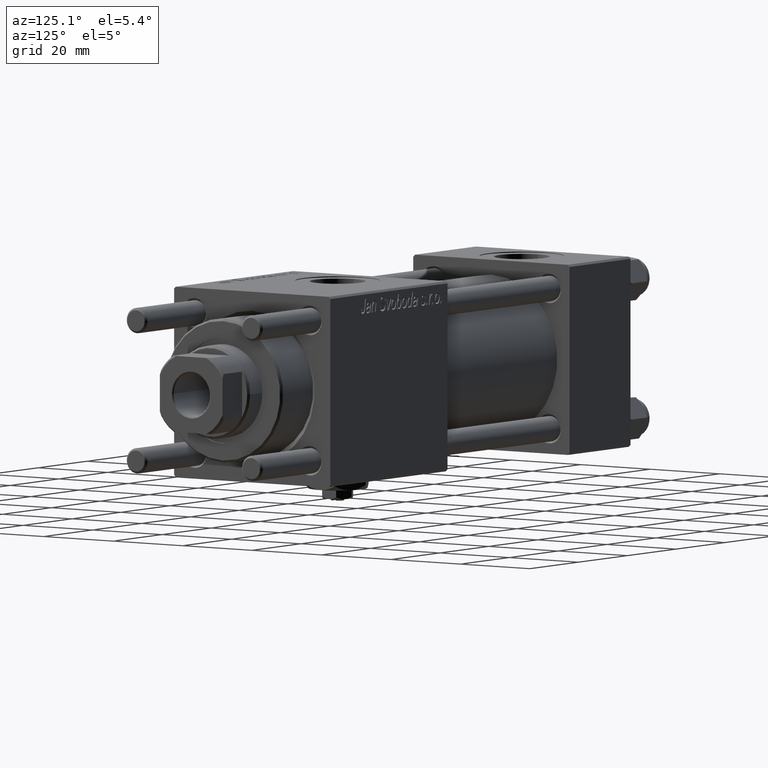
[diagram: clean part render]
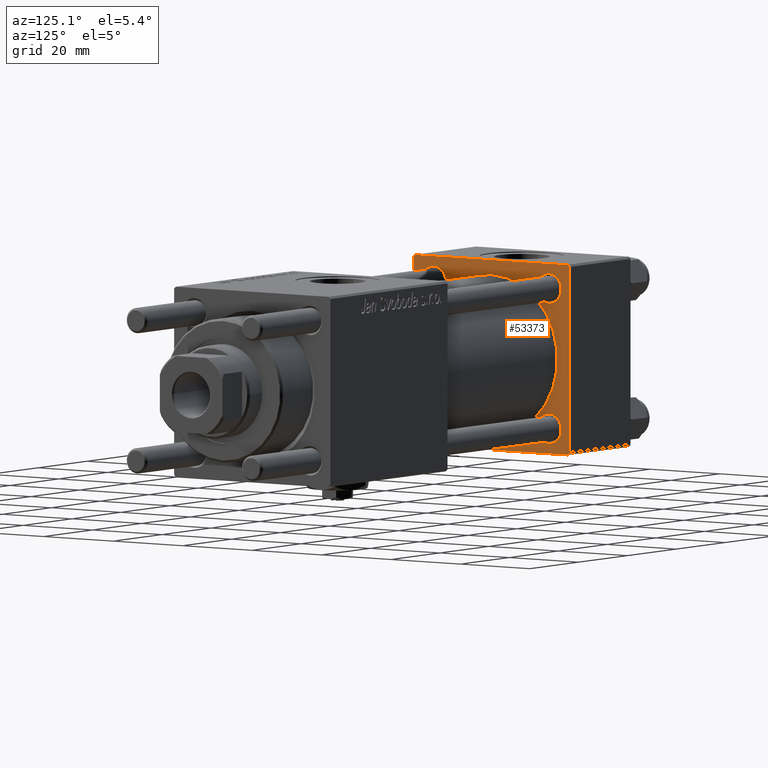
[diagram: same view with one face highlighted and labeled with its STEP entity id]
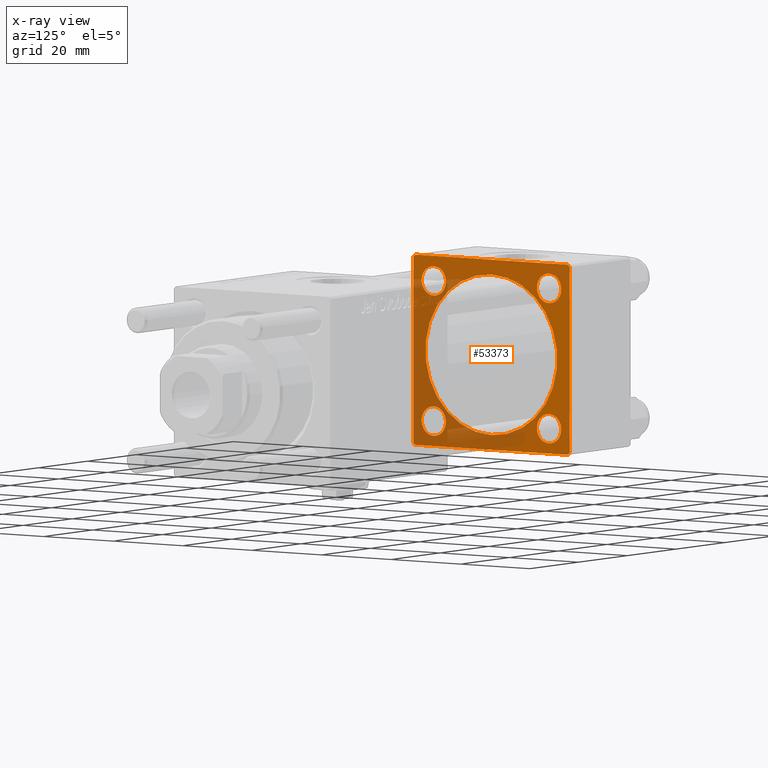
[diagram: x-ray of the same camera — body ghosted, the highlighted face saturated]
A machine part, auxiliary view. The second image highlights one B-rep face of the part: STEP entity #53373.
The next image is the same camera in x-ray: the body ghosted, the highlighted face saturated — about 42% of this face is hidden behind the body in this view.
In plain terms, the highlighted planar face has unit normal (-1, 0, 0).
Its self-contained STEP definition (entity closure, byte-faithful):
#847 = AXIS2_PLACEMENT_3D ( 'NONE', #55986, #29028, #7140 ) ;
#1072 = AXIS2_PLACEMENT_3D ( 'NONE', #54815, #8357, #23141 ) ;
#1102 = CARTESIAN_POINT ( 'NONE',  ( 25.00000000000000000, 22.50000000000000000, 22.50000000000000355 ) ) ;
#1128 = ORIENTED_EDGE ( 'NONE', *, *, #42527, .F. ) ;
#1263 = CARTESIAN_POINT ( 'NONE',  ( 25.00000000000000000, -22.50000000000000000, 22.00000000000000000 ) ) ;
#1580 = EDGE_LOOP ( 'NONE', ( #45397, #8542, #6514, #31144, #29597, #16347, #33210, #57409 ) ) ;
#1860 = CARTESIAN_POINT ( 'NONE',  ( 25.00000000000000000, -2.602085213965210642E-15, 0.000000000000000000 ) ) ;
#2073 = ORIENTED_EDGE ( 'NONE', *, *, #24302, .T. ) ;
#2341 = CARTESIAN_POINT ( 'NONE',  ( 25.00000000000000000, 16.59999999999999787, 20.10000000000000853 ) ) ;
#2348 = CARTESIAN_POINT ( 'NONE',  ( 25.00000000000000000, -16.59999999999999076, -16.60000000000000853 ) ) ;
#2454 = DIRECTION ( 'NONE',  ( 0.000000000000000000, 0.000000000000000000, 1.000000000000000000 ) ) ;
#3834 = DIRECTION ( 'NONE',  ( -1.000000000000000000, 0.000000000000000000, -0.000000000000000000 ) ) ;
#4342 = VERTEX_POINT ( 'NONE', #29108 ) ;
#4539 = CARTESIAN_POINT ( 'NONE',  ( 25.00000000000000000, 16.59999999999999787, -16.60000000000000497 ) ) ;
#4641 = VERTEX_POINT ( 'NONE', #22555 ) ;
#5210 = ORIENTED_EDGE ( 'NONE', *, *, #20395, .T. ) ;
#5440 = CARTESIAN_POINT ( 'NONE',  ( 25.00000000000000000, 22.50000000000000000, 21.99999999999999645 ) ) ;
#6058 = CARTESIAN_POINT ( 'NONE',  ( 25.00000000000000000, 0.000000000000000000, 0.000000000000000000 ) ) ;
#6514 = ORIENTED_EDGE ( 'NONE', *, *, #20107, .F. ) ;
#6740 = CIRCLE ( 'NONE', #1072, 3.499999999999992895 ) ;
#6781 = CARTESIAN_POINT ( 'NONE',  ( 25.00000000000000000, 22.50000000000000000, -22.49999999999999645 ) ) ;
#6878 = DIRECTION ( 'NONE',  ( 1.000000000000000000, -0.000000000000000000, 0.000000000000000000 ) ) ;
#7140 = DIRECTION ( 'NONE',  ( 0.000000000000000000, 0.000000000000000000, 1.000000000000000000 ) ) ;
#7391 = VERTEX_POINT ( 'NONE', #5440 ) ;
#7778 = EDGE_CURVE ( 'NONE', #49334, #56488, #23905, .T. ) ;
#8026 = CIRCLE ( 'NONE', #14614, 3.500000000000003109 ) ;
#8357 = DIRECTION ( 'NONE',  ( -1.000000000000000000, 0.000000000000000000, -0.000000000000000000 ) ) ;
#8542 = ORIENTED_EDGE ( 'NONE', *, *, #46347, .T. ) ;
#8986 = EDGE_LOOP ( 'NONE', ( #58377, #31448 ) ) ;
#9227 = LINE ( 'NONE', #45050, #24292 ) ;
#9330 = CARTESIAN_POINT ( 'NONE',  ( 25.00000000000000000, -22.50000000000000000, 22.50000000000000000 ) ) ;
#9516 = VECTOR ( 'NONE', #45141, 1000.000000000000000 ) ;
#10132 = AXIS2_PLACEMENT_3D ( 'NONE', #1860, #6878, #2454 ) ;
#10742 = DIRECTION ( 'NONE',  ( 0.000000000000000000, 0.7071067811865426878, -0.7071067811865524577 ) ) ;
#10872 = CARTESIAN_POINT ( 'NONE',  ( 25.00000000000000000, -2.602085213965210642E-15, 19.00000000000000000 ) ) ;
#11212 = DIRECTION ( 'NONE',  ( 0.000000000000000000, -0.7071067811865474617, 0.7071067811865474617 ) ) ;
#11435 = VERTEX_POINT ( 'NONE', #26628 ) ;
#11652 = CIRCLE ( 'NONE', #44756, 3.499999999999989342 ) ;
#11910 = VECTOR ( 'NONE', #23003, 1000.000000000000000 ) ;
#12442 = EDGE_LOOP ( 'NONE', ( #1128, #37909 ) ) ;
#12508 = VERTEX_POINT ( 'NONE', #57411 ) ;
#13913 = DIRECTION ( 'NONE',  ( 0.000000000000000000, 0.000000000000000000, 1.000000000000000000 ) ) ;
#14614 = AXIS2_PLACEMENT_3D ( 'NONE', #4539, #14848, #27279 ) ;
#14673 = CARTESIAN_POINT ( 'NONE',  ( 25.00000000000000000, 16.59999999999999787, 16.60000000000000497 ) ) ;
#14795 = EDGE_LOOP ( 'NONE', ( #15179, #5210 ) ) ;
#14848 = DIRECTION ( 'NONE',  ( -1.000000000000000000, 0.000000000000000000, -0.000000000000000000 ) ) ;
#14860 = DIRECTION ( 'NONE',  ( -0.000000000000000000, -0.7071067811865525687, -0.7071067811865425767 ) ) ;
#15179 = ORIENTED_EDGE ( 'NONE', *, *, #30203, .T. ) ;
#15831 = CARTESIAN_POINT ( 'NONE',  ( 25.00000000000000000, 21.99999999999999289, 22.50000000000000355 ) ) ;
#16347 = ORIENTED_EDGE ( 'NONE', *, *, #19129, .T. ) ;
#16426 = CIRCLE ( 'NONE', #18327, 19.00000000000000000 ) ;
#17039 = DIRECTION ( 'NONE',  ( 0.000000000000000000, 0.000000000000000000, 1.000000000000000000 ) ) ;
#17963 = CARTESIAN_POINT ( 'NONE',  ( 25.00000000000000000, 22.50000000000000000, -21.99999999999996803 ) ) ;
#18015 = DIRECTION ( 'NONE',  ( -1.000000000000000000, 0.000000000000000000, -0.000000000000000000 ) ) ;
#18315 = DIRECTION ( 'NONE',  ( 0.000000000000000000, 0.000000000000000000, 1.000000000000000000 ) ) ;
#18327 = AXIS2_PLACEMENT_3D ( 'NONE', #27811, #45597, #13913 ) ;
#18789 = EDGE_CURVE ( 'NONE', #28561, #42622, #48673, .T. ) ;
#19129 = EDGE_CURVE ( 'NONE', #21136, #50664, #57274, .T. ) ;
#19893 = EDGE_LOOP ( 'NONE', ( #2073, #44199 ) ) ;
#20107 = EDGE_CURVE ( 'NONE', #7391, #36459, #50157, .T. ) ;
#20222 = DIRECTION ( 'NONE',  ( -0.000000000000000000, 0.000000000000000000, 1.000000000000000000 ) ) ;
#20395 = EDGE_CURVE ( 'NONE', #12508, #4342, #6740, .T. ) ;
#21073 = CIRCLE ( 'NONE', #25795, 3.499999999999992895 ) ;
#21136 = VERTEX_POINT ( 'NONE', #33568 ) ;
#21185 = CARTESIAN_POINT ( 'NONE',  ( 25.00000000000000000, 16.59999999999999787, -20.10000000000000853 ) ) ;
#21859 = DIRECTION ( 'NONE',  ( 0.000000000000000000, 0.000000000000000000, 1.000000000000000000 ) ) ;
#22555 = CARTESIAN_POINT ( 'NONE',  ( 25.00000000000000000, 16.59999999999999787, 13.10000000000000142 ) ) ;
#22939 = CIRCLE ( 'NONE', #42811, 3.500000000000003109 ) ;
#23003 = DIRECTION ( 'NONE',  ( 0.000000000000000000, -1.000000000000000000, -7.709882115452476934E-17 ) ) ;
#23141 = DIRECTION ( 'NONE',  ( 0.000000000000000000, 0.000000000000000000, 1.000000000000000000 ) ) ;
#23795 = FACE_BOUND ( 'NONE', #51674, .T. ) ;
#23905 = CIRCLE ( 'NONE', #36162, 3.500000000000003109 ) ;
#24292 = VECTOR ( 'NONE', #37026, 1000.000000000000000 ) ;
#24302 = EDGE_CURVE ( 'NONE', #4641, #48651, #22939, .T. ) ;
#24530 = CARTESIAN_POINT ( 'NONE',  ( 25.00000000000000000, -21.99999999999997158, -22.50000000000000711 ) ) ;
#24817 = CARTESIAN_POINT ( 'NONE',  ( 25.00000000000000000, 21.99999999999999289, 22.50000000000000355 ) ) ;
#25795 = AXIS2_PLACEMENT_3D ( 'NONE', #42317, #29860, #28693 ) ;
#25879 = VECTOR ( 'NONE', #10742, 1000.000000000000000 ) ;
#25973 = DIRECTION ( 'NONE',  ( 0.000000000000000000, -1.000000000000000000, -2.312964634635742957E-16 ) ) ;
#26161 = CIRCLE ( 'NONE', #10132, 19.00000000000000000 ) ;
#26628 = CARTESIAN_POINT ( 'NONE',  ( 25.00000000000000000, -2.752562955852396712E-16, -19.00000000000000000 ) ) ;
#26747 = CARTESIAN_POINT ( 'NONE',  ( 25.00000000000000000, 22.50000000000000000, 22.50000000000000355 ) ) ;
#27279 = DIRECTION ( 'NONE',  ( 0.000000000000000000, 0.000000000000000000, 1.000000000000000000 ) ) ;
#27641 = EDGE_CURVE ( 'NONE', #42622, #28561, #11652, .T. ) ;
#27811 = CARTESIAN_POINT ( 'NONE',  ( 25.00000000000000000, -2.602085213965210642E-15, 0.000000000000000000 ) ) ;
#28520 = FACE_BOUND ( 'NONE', #8986, .T. ) ;
#28561 = VERTEX_POINT ( 'NONE', #38579 ) ;
#28693 = DIRECTION ( 'NONE',  ( 0.000000000000000000, 0.000000000000000000, 1.000000000000000000 ) ) ;
#29028 = DIRECTION ( 'NONE',  ( -1.000000000000000000, 0.000000000000000000, -0.000000000000000000 ) ) ;
#29108 = CARTESIAN_POINT ( 'NONE',  ( 25.00000000000000000, -16.59999999999999076, 13.10000000000001386 ) ) ;
#29597 = ORIENTED_EDGE ( 'NONE', *, *, #40262, .T. ) ;
#29860 = DIRECTION ( 'NONE',  ( -1.000000000000000000, 0.000000000000000000, -0.000000000000000000 ) ) ;
#29891 = VERTEX_POINT ( 'NONE', #24530 ) ;
#30010 = ORIENTED_EDGE ( 'NONE', *, *, #7778, .T. ) ;
#30055 = EDGE_CURVE ( 'NONE', #7391, #58223, #33710, .T. ) ;
#30203 = EDGE_CURVE ( 'NONE', #4342, #12508, #21073, .T. ) ;
#30692 = AXIS2_PLACEMENT_3D ( 'NONE', #44010, #56758, #17039 ) ;
#31144 = ORIENTED_EDGE ( 'NONE', *, *, #30055, .T. ) ;
#31448 = ORIENTED_EDGE ( 'NONE', *, *, #18789, .T. ) ;
#32481 = EDGE_CURVE ( 'NONE', #57630, #29891, #33238, .T. ) ;
#32732 = EDGE_CURVE ( 'NONE', #11435, #42760, #16426, .T. ) ;
#33210 = ORIENTED_EDGE ( 'NONE', *, *, #50699, .T. ) ;
#33238 = LINE ( 'NONE', #51305, #25879 ) ;
#33568 = CARTESIAN_POINT ( 'NONE',  ( 25.00000000000000000, -21.99999999999997868, 22.50000000000000000 ) ) ;
#33710 = LINE ( 'NONE', #24817, #47558 ) ;
#35805 = EDGE_CURVE ( 'NONE', #56488, #49334, #8026, .T. ) ;
#35811 = CIRCLE ( 'NONE', #847, 3.500000000000003109 ) ;
#35959 = AXIS2_PLACEMENT_3D ( 'NONE', #6058, #42442, #20222 ) ;
#36033 = LINE ( 'NONE', #1102, #11910 ) ;
#36162 = AXIS2_PLACEMENT_3D ( 'NONE', #44371, #3834, #21859 ) ;
#36459 = VERTEX_POINT ( 'NONE', #17963 ) ;
#37026 = DIRECTION ( 'NONE',  ( -0.000000000000000000, 0.7071067811865426878, 0.7071067811865524577 ) ) ;
#37420 = FACE_OUTER_BOUND ( 'NONE', #1580, .T. ) ;
#37569 = CARTESIAN_POINT ( 'NONE',  ( 25.00000000000000000, 16.59999999999999787, -13.10000000000000142 ) ) ;
#37909 = ORIENTED_EDGE ( 'NONE', *, *, #32732, .F. ) ;
#38579 = CARTESIAN_POINT ( 'NONE',  ( 25.00000000000000000, -16.59999999999999076, -13.10000000000001741 ) ) ;
#38732 = LINE ( 'NONE', #6781, #45977 ) ;
#39535 = VECTOR ( 'NONE', #54022, 1000.000000000000000 ) ;
#40262 = EDGE_CURVE ( 'NONE', #58223, #21136, #36033, .T. ) ;
#40705 = CARTESIAN_POINT ( 'NONE',  ( 25.00000000000000000, -22.50000000000000000, 22.00000000000000000 ) ) ;
#40772 = EDGE_CURVE ( 'NONE', #55465, #29891, #38732, .T. ) ;
#41028 = ORIENTED_EDGE ( 'NONE', *, *, #35805, .T. ) ;
#42317 = CARTESIAN_POINT ( 'NONE',  ( 25.00000000000000000, -16.59999999999999076, 16.60000000000000853 ) ) ;
#42442 = DIRECTION ( 'NONE',  ( -1.000000000000000000, 0.000000000000000000, -0.000000000000000000 ) ) ;
#42527 = EDGE_CURVE ( 'NONE', #42760, #11435, #26161, .T. ) ;
#42622 = VERTEX_POINT ( 'NONE', #53606 ) ;
#42760 = VERTEX_POINT ( 'NONE', #10872 ) ;
#42811 = AXIS2_PLACEMENT_3D ( 'NONE', #14673, #46950, #54934 ) ;
#44010 = CARTESIAN_POINT ( 'NONE',  ( 25.00000000000000000, -16.59999999999999076, -16.60000000000000853 ) ) ;
#44088 = CARTESIAN_POINT ( 'NONE',  ( 25.00000000000000000, 21.99999999999999289, -22.49999999999999645 ) ) ;
#44199 = ORIENTED_EDGE ( 'NONE', *, *, #52640, .T. ) ;
#44371 = CARTESIAN_POINT ( 'NONE',  ( 25.00000000000000000, 16.59999999999999787, -16.60000000000000497 ) ) ;
#44756 = AXIS2_PLACEMENT_3D ( 'NONE', #2348, #18015, #18315 ) ;
#44858 = LINE ( 'NONE', #9330, #39535 ) ;
#45050 = CARTESIAN_POINT ( 'NONE',  ( 25.00000000000000000, 22.50000000000000000, -21.99999999999998224 ) ) ;
#45141 = DIRECTION ( 'NONE',  ( 0.000000000000000000, 0.000000000000000000, -1.000000000000000000 ) ) ;
#45397 = ORIENTED_EDGE ( 'NONE', *, *, #40772, .F. ) ;
#45597 = DIRECTION ( 'NONE',  ( 1.000000000000000000, -0.000000000000000000, 0.000000000000000000 ) ) ;
#45691 = CARTESIAN_POINT ( 'NONE',  ( 25.00000000000000000, -22.50000000000000000, -21.99999999999997158 ) ) ;
#45977 = VECTOR ( 'NONE', #25973, 1000.000000000000000 ) ;
#46347 = EDGE_CURVE ( 'NONE', #55465, #36459, #9227, .T. ) ;
#46901 = FACE_BOUND ( 'NONE', #14795, .T. ) ;
#46950 = DIRECTION ( 'NONE',  ( -1.000000000000000000, 0.000000000000000000, -0.000000000000000000 ) ) ;
#47192 = PLANE ( 'NONE',  #35959 ) ;
#47478 = FACE_BOUND ( 'NONE', #12442, .T. ) ;
#47558 = VECTOR ( 'NONE', #11212, 1000.000000000000114 ) ;
#48651 = VERTEX_POINT ( 'NONE', #2341 ) ;
#48673 = CIRCLE ( 'NONE', #30692, 3.499999999999989342 ) ;
#49334 = VERTEX_POINT ( 'NONE', #37569 ) ;
#50157 = LINE ( 'NONE', #26747, #9516 ) ;
#50664 = VERTEX_POINT ( 'NONE', #40705 ) ;
#50699 = EDGE_CURVE ( 'NONE', #50664, #57630, #44858, .T. ) ;
#50754 = FACE_BOUND ( 'NONE', #19893, .T. ) ;
#51305 = CARTESIAN_POINT ( 'NONE',  ( 25.00000000000000000, -21.99999999999998579, -22.50000000000000711 ) ) ;
#51674 = EDGE_LOOP ( 'NONE', ( #41028, #30010 ) ) ;
#52640 = EDGE_CURVE ( 'NONE', #48651, #4641, #35811, .T. ) ;
#53373 = ADVANCED_FACE ( 'NONE', ( #28520, #23795, #46901, #50754, #47478, #37420 ), #47192, .F. ) ;
#53606 = CARTESIAN_POINT ( 'NONE',  ( 25.00000000000000000, -16.59999999999999076, -20.09999999999999787 ) ) ;
#54022 = DIRECTION ( 'NONE',  ( 0.000000000000000000, 0.000000000000000000, -1.000000000000000000 ) ) ;
#54815 = CARTESIAN_POINT ( 'NONE',  ( 25.00000000000000000, -16.59999999999999076, 16.60000000000000853 ) ) ;
#54934 = DIRECTION ( 'NONE',  ( 0.000000000000000000, 0.000000000000000000, 1.000000000000000000 ) ) ;
#55465 = VERTEX_POINT ( 'NONE', #44088 ) ;
#55986 = CARTESIAN_POINT ( 'NONE',  ( 25.00000000000000000, 16.59999999999999787, 16.60000000000000497 ) ) ;
#56488 = VERTEX_POINT ( 'NONE', #21185 ) ;
#56758 = DIRECTION ( 'NONE',  ( -1.000000000000000000, 0.000000000000000000, -0.000000000000000000 ) ) ;
#57274 = LINE ( 'NONE', #1263, #57724 ) ;
#57409 = ORIENTED_EDGE ( 'NONE', *, *, #32481, .T. ) ;
#57411 = CARTESIAN_POINT ( 'NONE',  ( 25.00000000000000000, -16.59999999999999076, 20.10000000000000142 ) ) ;
#57630 = VERTEX_POINT ( 'NONE', #45691 ) ;
#57724 = VECTOR ( 'NONE', #14860, 999.9999999999998863 ) ;
#58223 = VERTEX_POINT ( 'NONE', #15831 ) ;
#58377 = ORIENTED_EDGE ( 'NONE', *, *, #27641, .T. ) ;